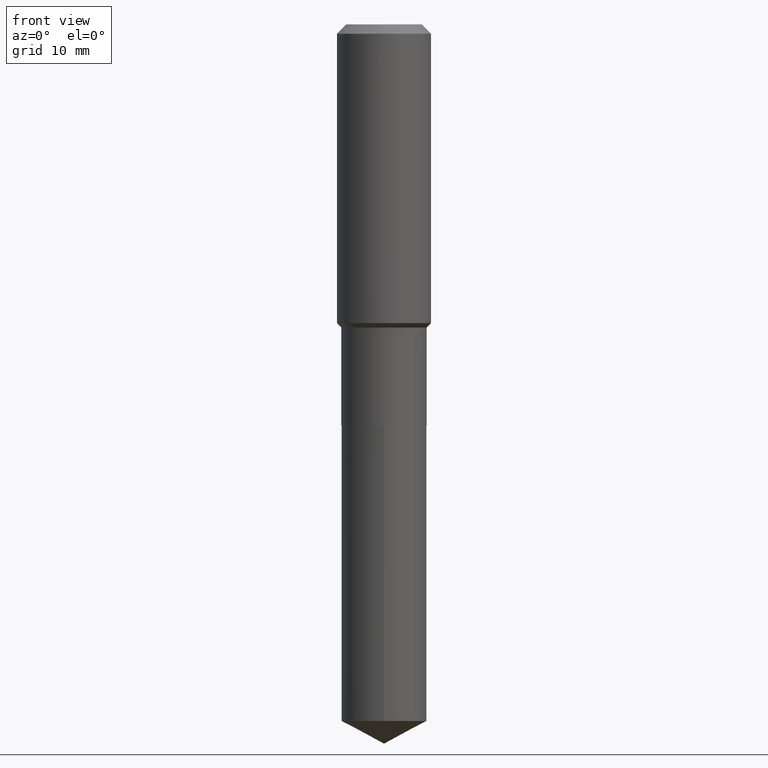
[diagram: clean part render]
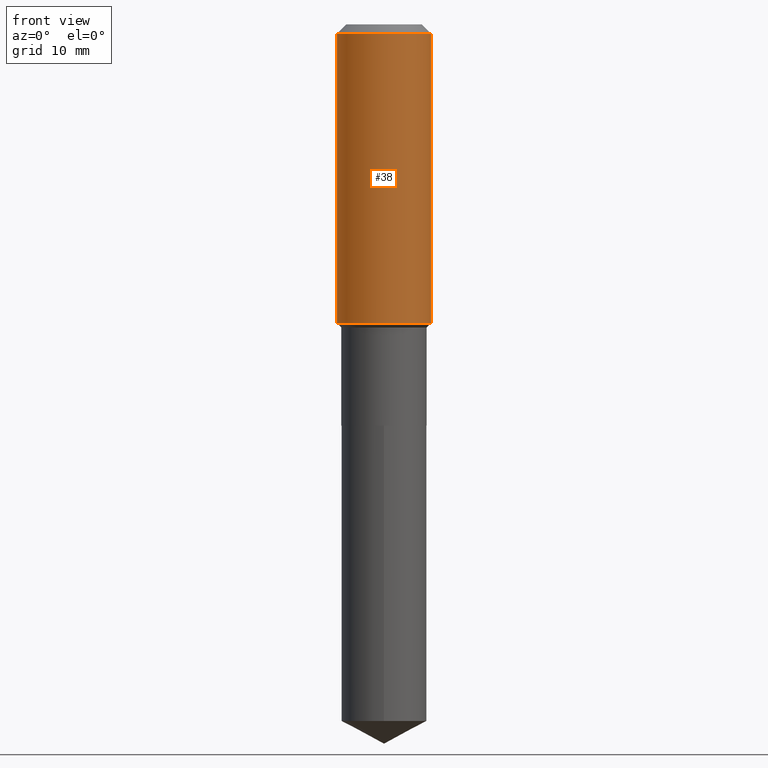
[diagram: same view with one face highlighted and labeled with its STEP entity id]
A machine part, front view. The second image highlights one B-rep face of the part: STEP entity #38.
In plain terms, the highlighted cylindrical surface (partial cylindrical patch) has radius 7.0002 mm, axis along (-0, 0, 1).
Its self-contained STEP definition (entity closure, byte-faithful):
#13 = DIRECTION ( 'NONE',  ( -2.445468806185136877E-29, 3.491481338843145188E-15, 1.000000000000000000 ) ) ;
#18 = EDGE_LOOP ( 'NONE', ( #409, #331, #230, #97 ) ) ;
#22 = DIRECTION ( 'NONE',  ( -2.445468806185136597E-29, 3.491481338843145583E-15, 1.000000000000000000 ) ) ;
#37 = CARTESIAN_POINT ( 'NONE',  ( 0.000000000000000000, 0.000000000000000000, 0.000000000000000000 ) ) ;
#38 = ADVANCED_FACE ( 'NONE', ( #488 ), #297, .T. ) ;
#41 = CIRCLE ( 'NONE', #175, 0.2756000000000002337 ) ;
#97 = ORIENTED_EDGE ( 'NONE', *, *, #204, .F. ) ;
#116 = AXIS2_PLACEMENT_3D ( 'NONE', #138, #410, #483 ) ;
#138 = CARTESIAN_POINT ( 'NONE',  ( 1.347942405969256063E-30, -1.924504513970354330E-16, -0.05512000000000035621 ) ) ;
#149 = DIRECTION ( 'NONE',  ( 1.000000000000000000, -6.982962677686267499E-15, 4.876176775795935793E-29 ) ) ;
#174 = VERTEX_POINT ( 'NONE', #370 ) ;
#175 = AXIS2_PLACEMENT_3D ( 'NONE', #445, #22, #231 ) ;
#190 = DIRECTION ( 'NONE',  ( -2.445468806185136597E-29, 3.491481338843145583E-15, 1.000000000000000000 ) ) ;
#204 = EDGE_CURVE ( 'NONE', #174, #400, #247, .T. ) ;
#208 = CARTESIAN_POINT ( 'NONE',  ( 0.2756000000000000116, -2.116954965367370658E-15, -0.05512000000000035621 ) ) ;
#230 = ORIENTED_EDGE ( 'NONE', *, *, #446, .T. ) ;
#231 = DIRECTION ( 'NONE',  ( 1.000000000000000000, -6.982962677686267499E-15, 0.000000000000000000 ) ) ;
#239 = CARTESIAN_POINT ( 'NONE',  ( -0.2756000000000002337, -4.151138266952898691E-15, -1.749800000000000244 ) ) ;
#247 = CIRCLE ( 'NONE', #116, 0.2756000000000000116 ) ;
#285 = CARTESIAN_POINT ( 'NONE',  ( 0.2756000000000002337, -8.033898560678073390E-15, -1.749800000000000244 ) ) ;
#297 = CYLINDRICAL_SURFACE ( 'NONE', #459, 0.2756000000000001227 ) ;
#303 = VECTOR ( 'NONE', #390, 39.37007874015748143 ) ;
#315 = CARTESIAN_POINT ( 'NONE',  ( -0.2756000000000001227, 1.958255779754836984E-15, -1.355658510874252567E-29 ) ) ;
#320 = VERTEX_POINT ( 'NONE', #285 ) ;
#331 = ORIENTED_EDGE ( 'NONE', *, *, #333, .T. ) ;
#333 = EDGE_CURVE ( 'NONE', #471, #320, #41, .T. ) ;
#370 = CARTESIAN_POINT ( 'NONE',  ( -0.2756000000000000116, -1.192666469297548903E-15, -0.05512000000000035621 ) ) ;
#384 = LINE ( 'NONE', #315, #462 ) ;
#390 = DIRECTION ( 'NONE',  ( -2.445468806185136877E-29, 3.491481338843145188E-15, 1.000000000000000000 ) ) ;
#400 = VERTEX_POINT ( 'NONE', #208 ) ;
#409 = ORIENTED_EDGE ( 'NONE', *, *, #428, .F. ) ;
#410 = DIRECTION ( 'NONE',  ( -2.445468806185136597E-29, 3.491481338843145583E-15, 1.000000000000000000 ) ) ;
#427 = LINE ( 'NONE', #456, #303 ) ;
#428 = EDGE_CURVE ( 'NONE', #471, #174, #384, .T. ) ;
#445 = CARTESIAN_POINT ( 'NONE',  ( 4.279081317062752596E-29, -6.109394046707736858E-15, -1.749800000000000244 ) ) ;
#446 = EDGE_CURVE ( 'NONE', #320, #400, #427, .T. ) ;
#456 = CARTESIAN_POINT ( 'NONE',  ( 0.2756000000000001227, -1.924504513970336137E-15, 1.343874319409360548E-29 ) ) ;
#459 = AXIS2_PLACEMENT_3D ( 'NONE', #37, #190, #149 ) ;
#462 = VECTOR ( 'NONE', #13, 39.37007874015748143 ) ;
#471 = VERTEX_POINT ( 'NONE', #239 ) ;
#483 = DIRECTION ( 'NONE',  ( 1.000000000000000000, -6.982962677686265922E-15, 0.000000000000000000 ) ) ;
#488 = FACE_OUTER_BOUND ( 'NONE', #18, .T. ) ;